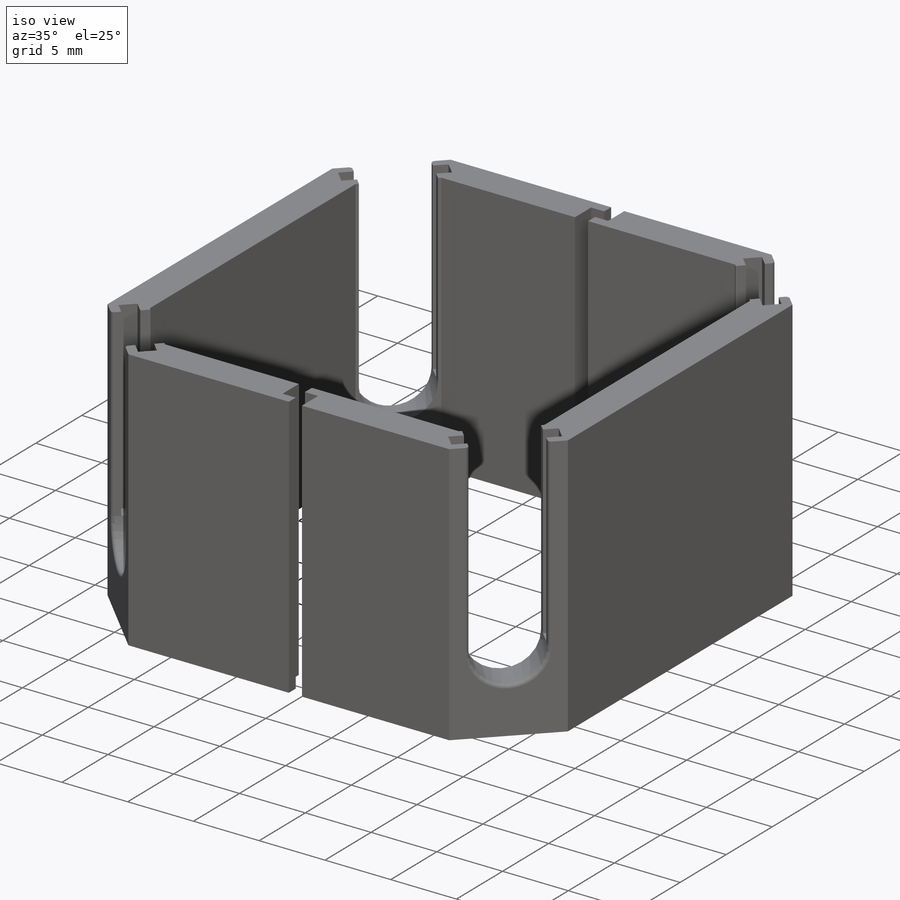
[diagram: iso view]
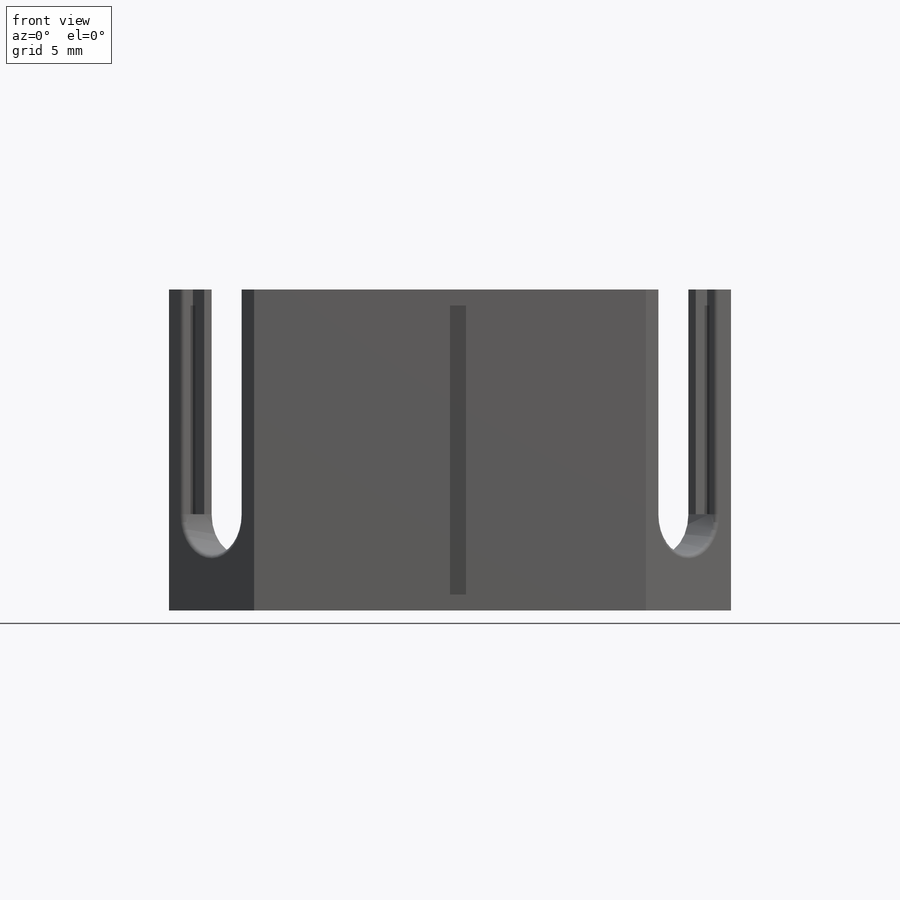
[diagram: front view]
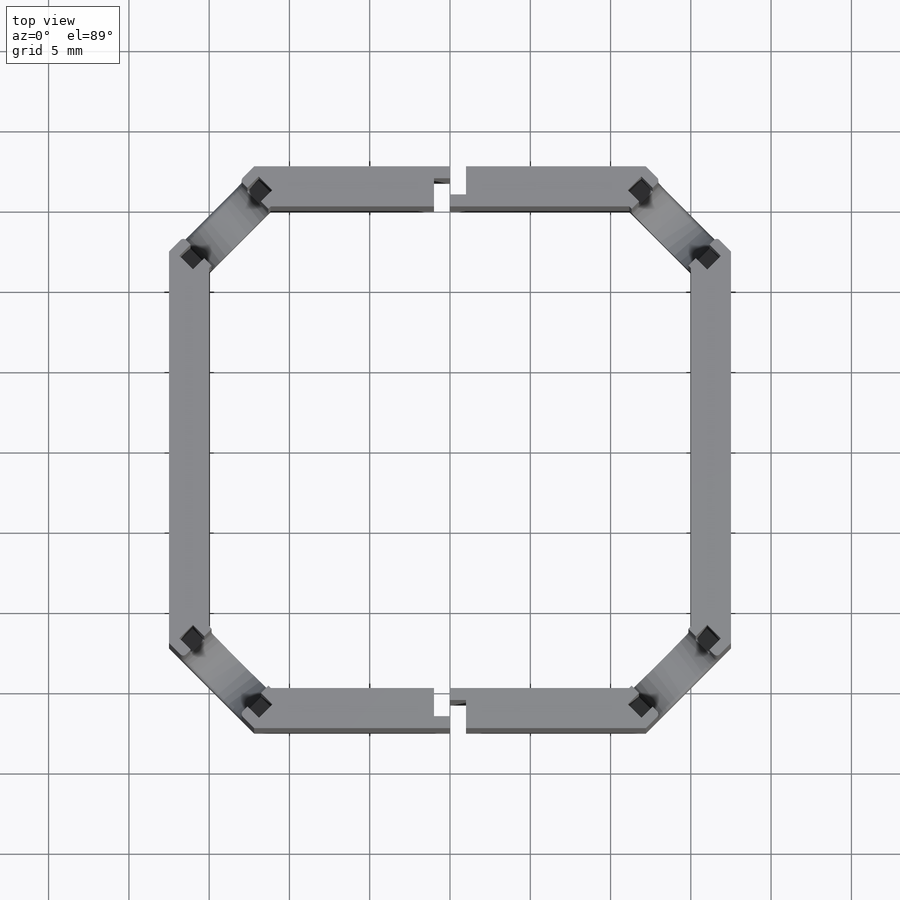
[diagram: top view]
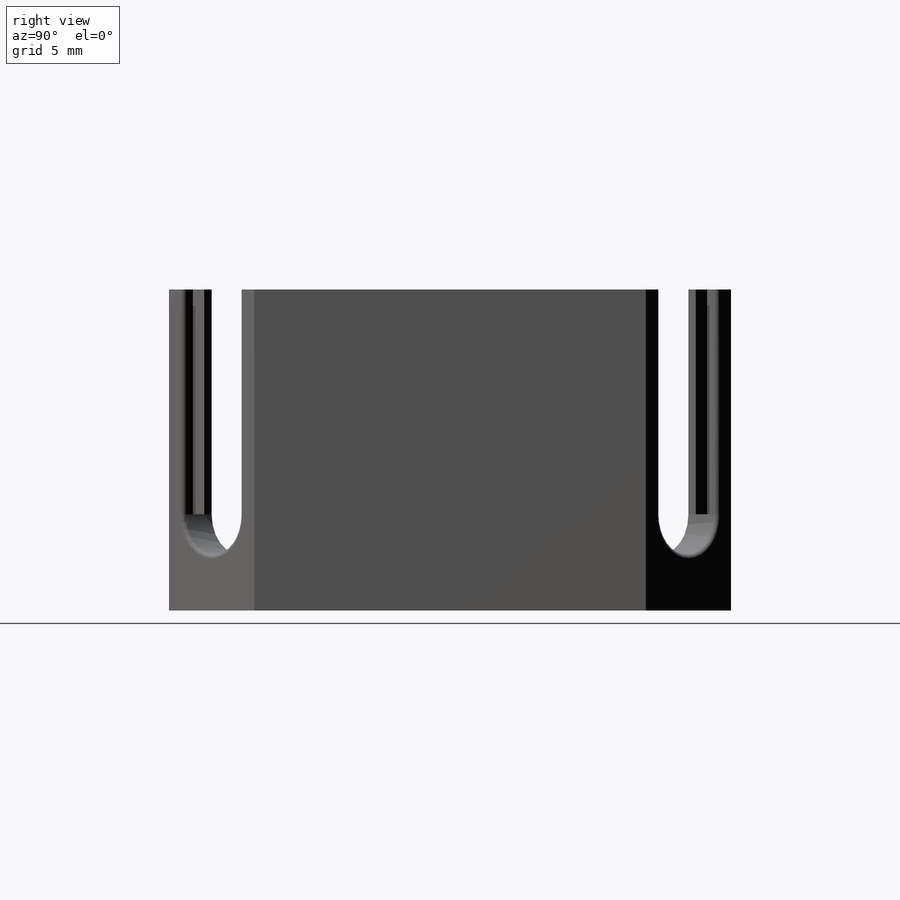
[diagram: right view]
SOLIDWORKS PART (.sldprt)
format: sldprt  version: not decoded by parser v0  size: 392,704 bytes
history: native  units: mm
features: sketch x5, cut_extrude x4, plane x2, pattern_circular x2, mirror x2, material x1, extrude x1, fillet x1 (+13 scaffold rows collapsed)
feature tree (31):
  scaffold x13  (default folders/planes/origin — collapsed)
  material  "Material <not specified>"
  sketch  "Sketch1"  dims[c1.D1=~3.521127mm c2.D1=135.0deg c2.D2=30.0mm c2.D3=30.0mm c3.D1=~3.521127mm c4.D1=135.0deg c4.D4=5.0mm c4.D2=37.5mm c4.D3=~3.535534mm c5.D3=135.0deg c6.D3=~22.96531mm c7.D3=135.0deg c7.D5=~3.535534mm c8.D5=135.0deg c9.D5=~22.98097mm c10.D5=135.0deg c11.D5=~22.98097mm c12.D5=135.0deg c13.D5=5.0mm c14.D5=135.0deg c14.D1=37.5mm c15.D1=90.0deg c16.D1=~22.98097mm c16.D3=~3.535534mm c17.D3=135.0deg c17.D1=23.0mm c17.D2=35.0mm c18.D1=~11.490533mm c18.D3=~15.026067mm c18.D4=11.4384mm c18.D5=~14.973933mm c19.D1=~11.490533mm c19.D3=~11.452928mm c19.D4=~14.988462mm c19.D5=~11.476004mm c19.D6=~15.011538mm c20.D3=~11.452928mm c20.D4=~15.011538mm c20.D1=7.5mm]
  extrude  "Boss-Extrude1"  Depth=20mm
  sketch  "Sketch2"  dims[D1=2.5mm]
  cut_extrude  "Cut-Extrude1"  [1 undecoded]
  plane  "Plane3"  Offset=0mm
  sketch  "Sketch4"  dims[D1=2.5mm D2=14.0mm]
  cut_extrude  "Cut-Extrude2"  [1 undecoded]
  plane  "Plane1"
  pattern_circular  "CirPattern3"  Count=4 Angle=360deg
  sketch  "Sketch5"  dims[c1.D1=1.0mm c1.D2=1.0mm c2.D1=1.0mm c2.D2=1.0mm c3.D1=1.2mm c3.D2=1.0mm]
  cut_extrude  "Cut-Extrude3"  Depth=14mm
  mirror  "Mirror1"
  pattern_circular  "CirPattern4"  Count=4 Angle=360deg
  fillet  "Fillet1"  Radius=0.25mm
  sketch  "Sketch6"  dims[D1=0.5mm D2=0.5mm D3=0.5mm]
  cut_extrude  "Cut-Extrude4"  [1 undecoded]
  mirror  "Mirror2"
decode coverage: 10 of 15 modeling features carry decoded parameters
note: ~ marks probable driven/reference dimensions
note: 3 parameter values undecoded
summary: no parameter record found for 3 features
note: suppression state not decoded; provenance and decode notes live in map.json
